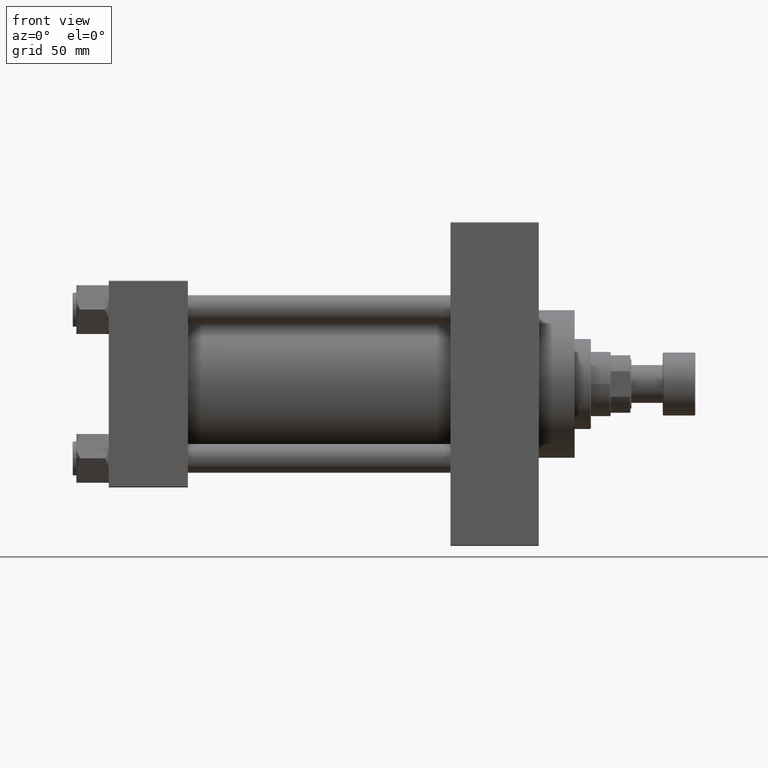
[diagram: clean part render]
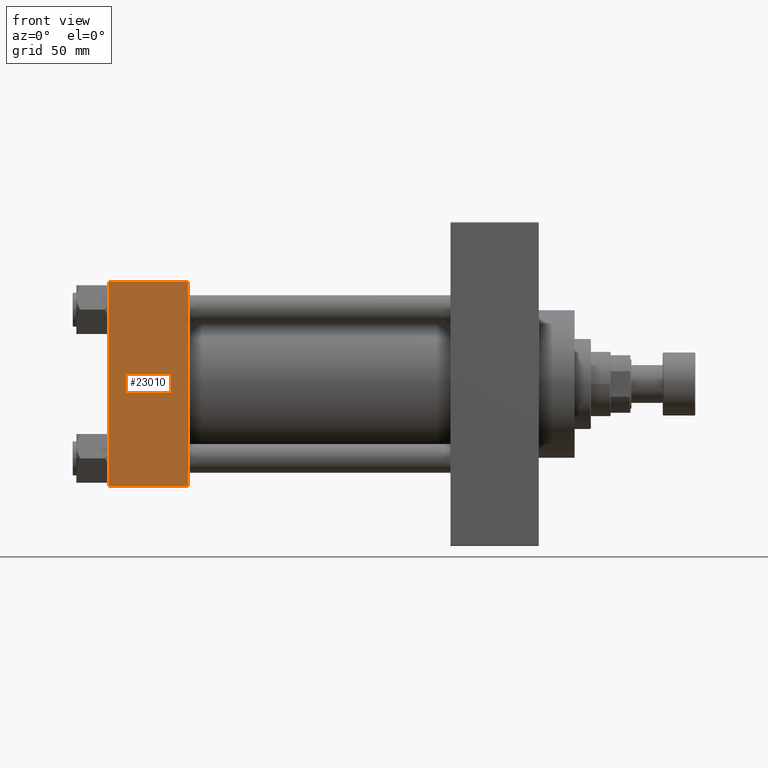
[diagram: same view with one face highlighted and labeled with its STEP entity id]
A machine part, front view. The second image highlights one B-rep face of the part: STEP entity #23010.
In plain terms, the highlighted planar face has unit normal (0, 1, 0).
Its self-contained STEP definition (entity closure, byte-faithful):
#315 = VERTEX_POINT ( 'NONE', #30462 ) ;
#1009 = EDGE_CURVE ( 'NONE', #37069, #27433, #6348, .T. ) ;
#2641 = VECTOR ( 'NONE', #7406, 1000.000000000000000 ) ;
#2675 = CARTESIAN_POINT ( 'NONE',  ( 44.00000000000000000, -57.50000000000000711, -57.00000000000000711 ) ) ;
#3738 = LINE ( 'NONE', #4212, #2641 ) ;
#4212 = CARTESIAN_POINT ( 'NONE',  ( 0.000000000000000000, -57.50000000000000711, 57.49999999999999289 ) ) ;
#5011 = VECTOR ( 'NONE', #12708, 1000.000000000000000 ) ;
#5271 = DIRECTION ( 'NONE',  ( 0.000000000000000000, -0.000000000000000000, 1.000000000000000000 ) ) ;
#5622 = CARTESIAN_POINT ( 'NONE',  ( 44.00000000000000000, -57.50000000000000711, 57.00000000000000711 ) ) ;
#6348 = LINE ( 'NONE', #2675, #40296 ) ;
#6835 = PLANE ( 'NONE',  #29303 ) ;
#7406 = DIRECTION ( 'NONE',  ( 0.000000000000000000, 0.000000000000000000, -1.000000000000000000 ) ) ;
#9605 = VERTEX_POINT ( 'NONE', #5622 ) ;
#10492 = FACE_OUTER_BOUND ( 'NONE', #32862, .T. ) ;
#12393 = CARTESIAN_POINT ( 'NONE',  ( 0.000000000000000000, -57.50000000000000711, -57.00000000000000711 ) ) ;
#12708 = DIRECTION ( 'NONE',  ( -1.000000000000000000, 0.000000000000000000, 0.000000000000000000 ) ) ;
#12713 = VECTOR ( 'NONE', #23968, 1000.000000000000000 ) ;
#13241 = ORIENTED_EDGE ( 'NONE', *, *, #21155, .T. ) ;
#14612 = EDGE_CURVE ( 'NONE', #9605, #27433, #20297, .T. ) ;
#15237 = ORIENTED_EDGE ( 'NONE', *, *, #14612, .F. ) ;
#18183 = EDGE_CURVE ( 'NONE', #9605, #315, #27393, .T. ) ;
#20297 = LINE ( 'NONE', #42548, #12713 ) ;
#21155 = EDGE_CURVE ( 'NONE', #315, #37069, #3738, .T. ) ;
#23010 = ADVANCED_FACE ( 'NONE', ( #10492 ), #6835, .F. ) ;
#23968 = DIRECTION ( 'NONE',  ( 0.000000000000000000, 0.000000000000000000, -1.000000000000000000 ) ) ;
#25165 = DIRECTION ( 'NONE',  ( 1.000000000000000000, 0.000000000000000000, 0.000000000000000000 ) ) ;
#27393 = LINE ( 'NONE', #34746, #5011 ) ;
#27433 = VERTEX_POINT ( 'NONE', #39068 ) ;
#29303 = AXIS2_PLACEMENT_3D ( 'NONE', #47907, #29340, #5271 ) ;
#29340 = DIRECTION ( 'NONE',  ( -0.000000000000000000, 1.000000000000000000, 0.000000000000000000 ) ) ;
#30462 = CARTESIAN_POINT ( 'NONE',  ( 0.000000000000000000, -57.50000000000000711, 57.00000000000000711 ) ) ;
#32862 = EDGE_LOOP ( 'NONE', ( #13241, #47257, #15237, #36972 ) ) ;
#34746 = CARTESIAN_POINT ( 'NONE',  ( 44.00000000000000000, -57.50000000000000711, 57.00000000000000711 ) ) ;
#36972 = ORIENTED_EDGE ( 'NONE', *, *, #18183, .T. ) ;
#37069 = VERTEX_POINT ( 'NONE', #12393 ) ;
#39068 = CARTESIAN_POINT ( 'NONE',  ( 44.00000000000000000, -57.50000000000000711, -57.00000000000000711 ) ) ;
#40296 = VECTOR ( 'NONE', #25165, 1000.000000000000000 ) ;
#42548 = CARTESIAN_POINT ( 'NONE',  ( 44.00000000000000000, -57.50000000000000711, 57.49999999999999289 ) ) ;
#47257 = ORIENTED_EDGE ( 'NONE', *, *, #1009, .T. ) ;
#47907 = CARTESIAN_POINT ( 'NONE',  ( 44.00000000000000000, -57.50000000000000711, 57.49999999999999289 ) ) ;